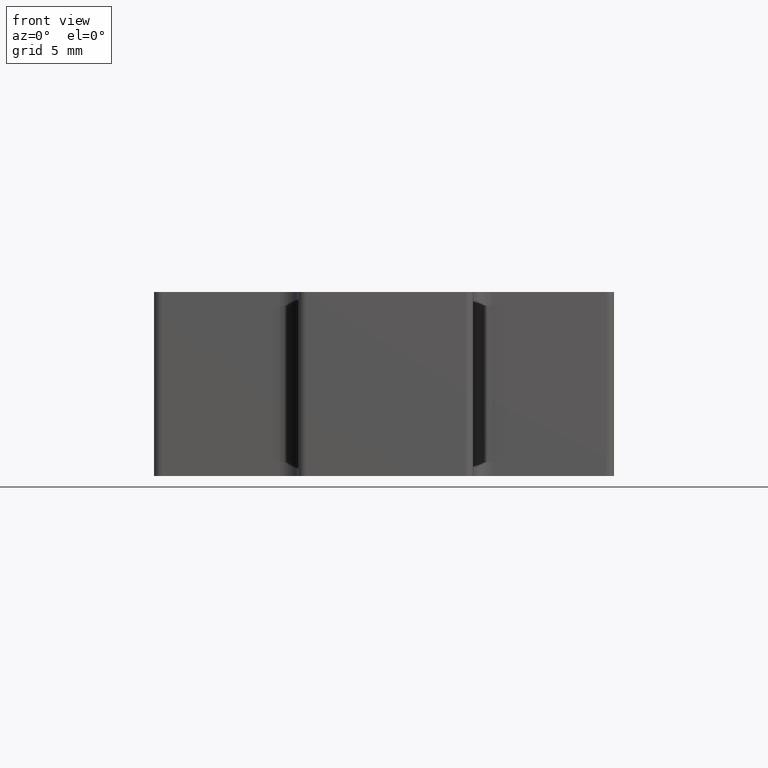
[diagram: clean part render]
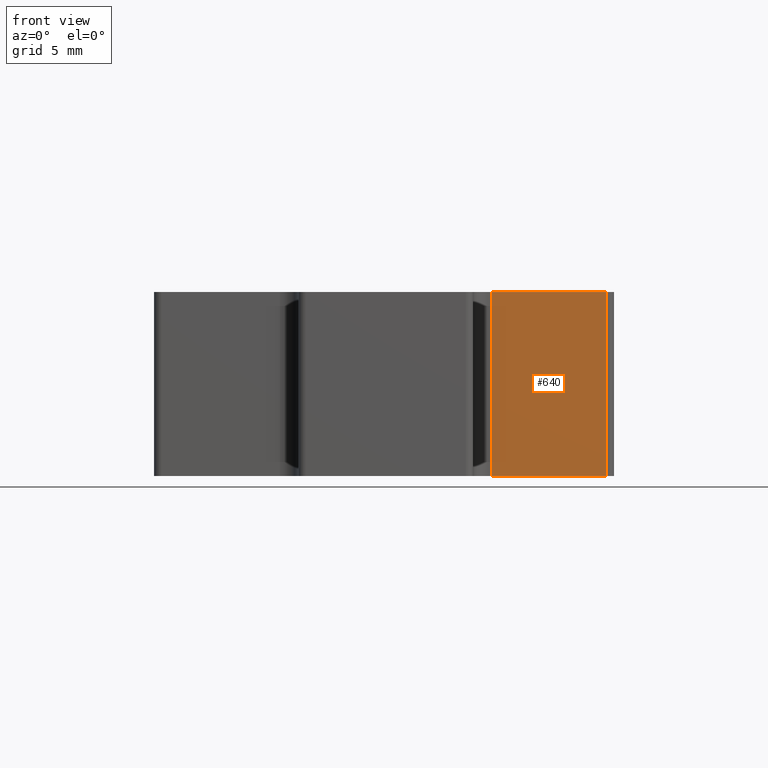
[diagram: same view with one face highlighted and labeled with its STEP entity id]
A machine part, front view. The second image highlights one B-rep face of the part: STEP entity #640.
In plain terms, the highlighted planar face has unit normal (0, -1, 0).
Its self-contained STEP definition (entity closure, byte-faithful):
#1 = VERTEX_POINT ( 'NONE', #1107 ) ;
#47 = LINE ( 'NONE', #887, #609 ) ;
#150 = EDGE_LOOP ( 'NONE', ( #1138, #922, #843, #1530 ) ) ;
#222 = EDGE_CURVE ( 'NONE', #1, #1785, #1178, .T. ) ;
#314 = VERTEX_POINT ( 'NONE', #759 ) ;
#336 = DIRECTION ( 'NONE',  ( 0.000000000000000000, -0.000000000000000000, -1.000000000000000000 ) ) ;
#463 = CARTESIAN_POINT ( 'NONE',  ( 0.9847367399999998883, -0.8239999999999998437, 0.3119999999999999996 ) ) ;
#487 = PLANE ( 'NONE',  #883 ) ;
#514 = VECTOR ( 'NONE', #1340, 39.37007874015748143 ) ;
#609 = VECTOR ( 'NONE', #1069, 39.37007874015748143 ) ;
#640 = ADVANCED_FACE ( 'NONE', ( #1175 ), #487, .T. ) ;
#649 = EDGE_CURVE ( 'NONE', #1281, #314, #47, .T. ) ;
#653 = CARTESIAN_POINT ( 'NONE',  ( 0.9847367399999998883, -0.8239999999999998437, 0.3119999999999999996 ) ) ;
#759 = CARTESIAN_POINT ( 'NONE',  ( 0.6717367399999998323, -0.8239999999999998437, -0.1880000000000000282 ) ) ;
#786 = DIRECTION ( 'NONE',  ( -1.000000000000000000, -0.000000000000000000, -0.000000000000000000 ) ) ;
#798 = CARTESIAN_POINT ( 'NONE',  ( 0.6717367399999998323, -0.8239999999999998437, 0.3119999999999999996 ) ) ;
#822 = EDGE_CURVE ( 'NONE', #1, #314, #1293, .T. ) ;
#843 = ORIENTED_EDGE ( 'NONE', *, *, #1683, .T. ) ;
#876 = CARTESIAN_POINT ( 'NONE',  ( 0.6217367399999997879, -0.8239999999999998437, 0.3119999999999999996 ) ) ;
#883 = AXIS2_PLACEMENT_3D ( 'NONE', #876, #1310, #336 ) ;
#887 = CARTESIAN_POINT ( 'NONE',  ( 0.6717367399999998323, -0.8239999999999998437, -0.1880000000000000282 ) ) ;
#922 = ORIENTED_EDGE ( 'NONE', *, *, #222, .T. ) ;
#986 = CARTESIAN_POINT ( 'NONE',  ( 0.6217367399999997879, -0.8239999999999998437, -0.1880000000000000282 ) ) ;
#1069 = DIRECTION ( 'NONE',  ( 0.000000000000000000, 0.000000000000000000, -1.000000000000000000 ) ) ;
#1107 = CARTESIAN_POINT ( 'NONE',  ( 0.9847367399999998883, -0.8239999999999998437, -0.1880000000000000282 ) ) ;
#1138 = ORIENTED_EDGE ( 'NONE', *, *, #822, .F. ) ;
#1175 = FACE_OUTER_BOUND ( 'NONE', #150, .T. ) ;
#1178 = LINE ( 'NONE', #463, #514 ) ;
#1281 = VERTEX_POINT ( 'NONE', #798 ) ;
#1293 = LINE ( 'NONE', #986, #1298 ) ;
#1298 = VECTOR ( 'NONE', #1405, 39.37007874015748143 ) ;
#1310 = DIRECTION ( 'NONE',  ( 0.000000000000000000, -1.000000000000000000, 0.000000000000000000 ) ) ;
#1335 = CARTESIAN_POINT ( 'NONE',  ( 0.6217367399999997879, -0.8239999999999998437, 0.3119999999999999996 ) ) ;
#1340 = DIRECTION ( 'NONE',  ( -0.000000000000000000, -0.000000000000000000, 1.000000000000000000 ) ) ;
#1405 = DIRECTION ( 'NONE',  ( -1.000000000000000000, -0.000000000000000000, -0.000000000000000000 ) ) ;
#1530 = ORIENTED_EDGE ( 'NONE', *, *, #649, .T. ) ;
#1683 = EDGE_CURVE ( 'NONE', #1785, #1281, #1753, .T. ) ;
#1753 = LINE ( 'NONE', #1335, #1816 ) ;
#1785 = VERTEX_POINT ( 'NONE', #653 ) ;
#1816 = VECTOR ( 'NONE', #786, 39.37007874015748143 ) ;